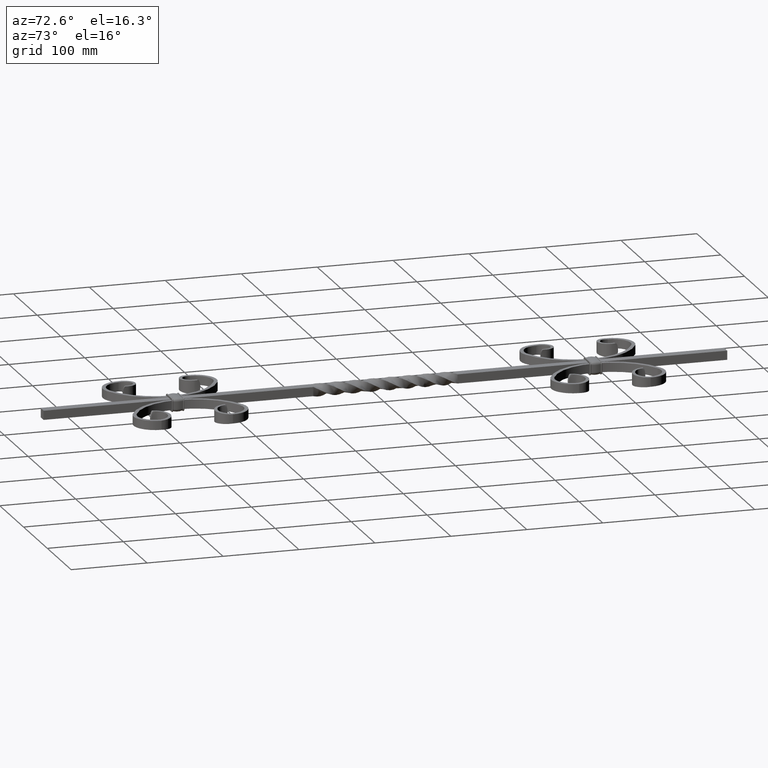
[diagram: clean part render]
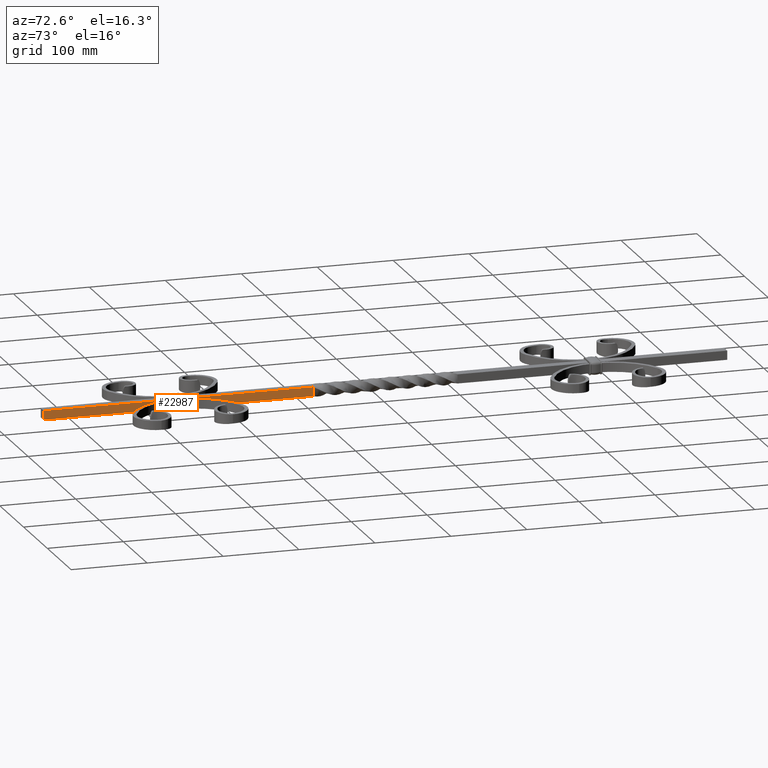
[diagram: same view with one face highlighted and labeled with its STEP entity id]
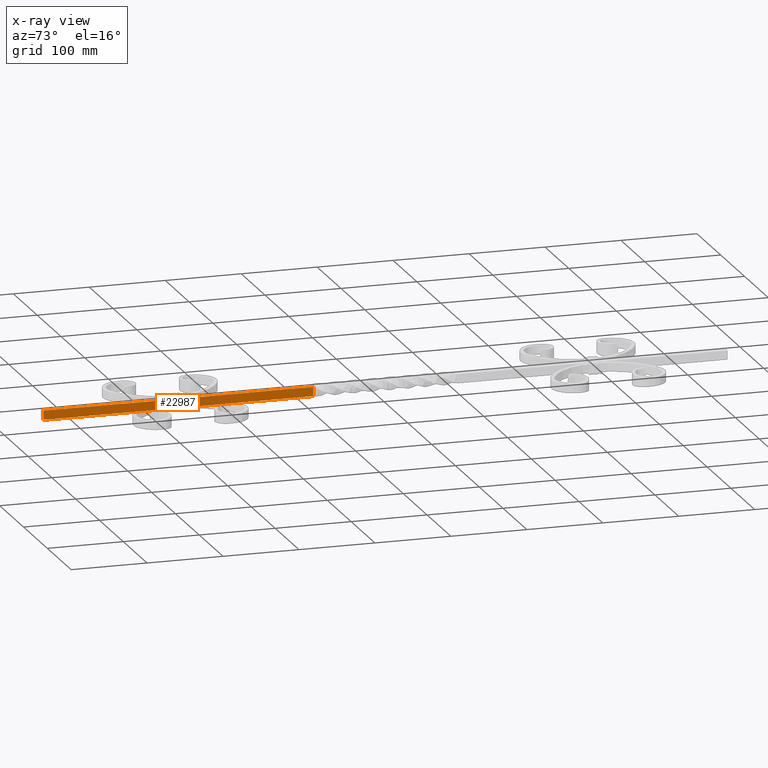
[diagram: x-ray of the same camera — body ghosted, the highlighted face saturated]
A machine part, auxiliary view. The second image highlights one B-rep face of the part: STEP entity #22987.
The next image is the same camera in x-ray: the body ghosted, the highlighted face saturated — about 0% of this face is hidden behind the body in this view.
In plain terms, the highlighted planar face has unit normal (-1, 0, 0).
Its self-contained STEP definition (entity closure, byte-faithful):
#489 = CARTESIAN_POINT ( 'NONE',  ( 5.999999833333336419, -450.0000000000000000, 5.999999999999999112 ) ) ;
#641 = ORIENTED_EDGE ( 'NONE', *, *, #5366, .F. ) ;
#1191 = DIRECTION ( 'NONE',  ( 0.000000000000000000, 0.000000000000000000, 1.000000000000000000 ) ) ;
#1527 = CARTESIAN_POINT ( 'NONE',  ( 6.000000000000002665, 450.0000000000000000, -6.000000000000000888 ) ) ;
#2392 = EDGE_LOOP ( 'NONE', ( #17008, #641, #14295, #19525, #13676, #11693, #13683, #16794 ) ) ;
#2636 = CARTESIAN_POINT ( 'NONE',  ( 6.000000000000002665, -450.0000000000000000, -5.999999833333335530 ) ) ;
#2790 = CARTESIAN_POINT ( 'NONE',  ( 6.000000000000002665, -338.3333333333333144, -6.000000000000000888 ) ) ;
#3838 = CARTESIAN_POINT ( 'NONE',  ( 6.000000000000002665, -338.3333333333333144, 5.999999999999999112 ) ) ;
#4443 = EDGE_CURVE ( 'NONE', #4492, #12922, #11449, .T. ) ;
#4492 = VERTEX_POINT ( 'NONE', #8671 ) ;
#4552 = CARTESIAN_POINT ( 'NONE',  ( 6.000000000000002665, -450.0000000000000000, 1.999999999999999556 ) ) ;
#4626 = EDGE_CURVE ( 'NONE', #12922, #22944, #16158, .T. ) ;
#5366 = EDGE_CURVE ( 'NONE', #23321, #11657, #7153, .T. ) ;
#5415 = B_SPLINE_CURVE_WITH_KNOTS ( 'NONE', 3,
 ( #9183, #3838, #11095, #5555 ),
 .UNSPECIFIED., .F., .F.,
 ( 4, 4 ),
 ( 0.5281690140845067827, 1.000000000000000000 ),
 .UNSPECIFIED. ) ;
#5555 = CARTESIAN_POINT ( 'NONE',  ( 5.999999833333336419, -450.0000000000000000, 5.999999999999999112 ) ) ;
#5876 = EDGE_CURVE ( 'NONE', #23127, #10347, #5415, .T. ) ;
#7037 = B_SPLINE_CURVE_WITH_KNOTS ( 'NONE', 3,
 ( #489, #4552, #19690, #15909 ),
 .UNSPECIFIED., .F., .F.,
 ( 4, 4 ),
 ( 0.000000000000000000, 0.9999999583333334385 ),
 .UNSPECIFIED. ) ;
#7153 = B_SPLINE_CURVE_WITH_KNOTS ( 'NONE', 3,
 ( #21652, #2790, #23596, #2636 ),
 .UNSPECIFIED., .F., .F.,
 ( 4, 4 ),
 ( 0.5281690140845067827, 1.000000000000000000 ),
 .UNSPECIFIED. ) ;
#7381 = CARTESIAN_POINT ( 'NONE',  ( 6.000000000000002665, -272.5000000000000000, -6.000000000000000000 ) ) ;
#7784 = B_SPLINE_CURVE_WITH_KNOTS ( 'NONE', 3,
 ( #18873, #7381, #24505, #14913 ),
 .UNSPECIFIED., .F., .F.,
 ( 4, 4 ),
 ( 0.4859154929577466642, 0.5281690140845067827 ),
 .UNSPECIFIED. ) ;
#7846 = DIRECTION ( 'NONE',  ( -0.000000000000000000, -0.000000000000000000, -1.000000000000000000 ) ) ;
#8460 = CARTESIAN_POINT ( 'NONE',  ( 6.000000000000002665, -152.5000000000000284, -6.000000000000000888 ) ) ;
#8671 = CARTESIAN_POINT ( 'NONE',  ( 6.000000036602328279, -94.99999992951285321, 5.999999978876450868 ) ) ;
#9183 = CARTESIAN_POINT ( 'NONE',  ( 6.000000000000002665, -282.5000000000000000, 5.999999999999999112 ) ) ;
#9647 = CARTESIAN_POINT ( 'NONE',  ( 6.000000000000002665, -267.5000000000000000, 5.999999999999969802 ) ) ;
#9719 = CARTESIAN_POINT ( 'NONE',  ( 6.000000000000002665, -282.5000000000000000, 5.999999999999999112 ) ) ;
#10347 = VERTEX_POINT ( 'NONE', #15077 ) ;
#10453 = CARTESIAN_POINT ( 'NONE',  ( 6.000000000000002665, -267.5000000000000568, -6.000000000000000888 ) ) ;
#10681 = EDGE_CURVE ( 'NONE', #22944, #23321, #7784, .T. ) ;
#10851 = CARTESIAN_POINT ( 'NONE',  ( 6.000000000000002665, -267.5000000000000000, 5.999999999999969802 ) ) ;
#11095 = CARTESIAN_POINT ( 'NONE',  ( 6.000000000000002665, -394.1666666666666856, 5.999999999999999112 ) ) ;
#11127 = VERTEX_POINT ( 'NONE', #23387 ) ;
#11449 = LINE ( 'NONE', #11889, #11748 ) ;
#11657 = VERTEX_POINT ( 'NONE', #13177 ) ;
#11693 = ORIENTED_EDGE ( 'NONE', *, *, #17434, .T. ) ;
#11748 = VECTOR ( 'NONE', #7846, 1000.000000000000000 ) ;
#11889 = CARTESIAN_POINT ( 'NONE',  ( 6.000000000000002665, -95.00000000000002842, -6.000000000000000888 ) ) ;
#12877 = B_SPLINE_CURVE_WITH_KNOTS ( 'NONE', 3,
 ( #19985, #14561, #18211, #10851 ),
 .UNSPECIFIED., .F., .F.,
 ( 4, 4 ),
 ( 0.000000000000000000, 0.4859154929577464976 ),
 .UNSPECIFIED. ) ;
#12922 = VERTEX_POINT ( 'NONE', #20874 ) ;
#13177 = CARTESIAN_POINT ( 'NONE',  ( 6.000000000000002665, -450.0000000000000000, -5.999999833333335530 ) ) ;
#13676 = ORIENTED_EDGE ( 'NONE', *, *, #4443, .F. ) ;
#13683 = ORIENTED_EDGE ( 'NONE', *, *, #18386, .T. ) ;
#14295 = ORIENTED_EDGE ( 'NONE', *, *, #10681, .F. ) ;
#14561 = CARTESIAN_POINT ( 'NONE',  ( 6.000000000000002665, -152.5000000000000284, 5.999999999999999112 ) ) ;
#14913 = CARTESIAN_POINT ( 'NONE',  ( 6.000000000000002665, -282.5000000000000568, -5.999999999999968914 ) ) ;
#15077 = CARTESIAN_POINT ( 'NONE',  ( 5.999999833333336419, -450.0000000000000000, 5.999999999999999112 ) ) ;
#15689 = CARTESIAN_POINT ( 'NONE',  ( 6.000000000000002665, -282.5000000000000568, -5.999999999999968914 ) ) ;
#15909 = CARTESIAN_POINT ( 'NONE',  ( 6.000000000000002665, -450.0000000000000000, -5.999999833333335530 ) ) ;
#16158 = B_SPLINE_CURVE_WITH_KNOTS ( 'NONE', 3,
 ( #19820, #8460, #21757, #10453 ),
 .UNSPECIFIED., .F., .F.,
 ( 4, 4 ),
 ( 0.000000000000000000, 0.4859154929577464976 ),
 .UNSPECIFIED. ) ;
#16205 = B_SPLINE_CURVE_WITH_KNOTS ( 'NONE', 3,
 ( #9647, #19434, #17147, #9719 ),
 .UNSPECIFIED., .F., .F.,
 ( 4, 4 ),
 ( 0.4859154929577466642, 0.5281690140845067827 ),
 .UNSPECIFIED. ) ;
#16546 = CARTESIAN_POINT ( 'NONE',  ( 6.000000000000002665, -267.5000000000000568, -6.000000000000000888 ) ) ;
#16794 = ORIENTED_EDGE ( 'NONE', *, *, #5876, .T. ) ;
#17008 = ORIENTED_EDGE ( 'NONE', *, *, #20622, .T. ) ;
#17147 = CARTESIAN_POINT ( 'NONE',  ( 6.000000000000002665, -277.4999999999999432, 5.999999999999998224 ) ) ;
#17434 = EDGE_CURVE ( 'NONE', #4492, #11127, #12877, .T. ) ;
#18211 = CARTESIAN_POINT ( 'NONE',  ( 6.000000000000002665, -210.0000000000000568, 5.999999999999999112 ) ) ;
#18364 = PLANE ( 'NONE',  #22177 ) ;
#18386 = EDGE_CURVE ( 'NONE', #11127, #23127, #16205, .T. ) ;
#18616 = CARTESIAN_POINT ( 'NONE',  ( 6.000000000000002665, -282.5000000000000000, 5.999999999999999112 ) ) ;
#18873 = CARTESIAN_POINT ( 'NONE',  ( 6.000000000000002665, -267.5000000000000568, -6.000000000000000888 ) ) ;
#19434 = CARTESIAN_POINT ( 'NONE',  ( 6.000000000000002665, -272.5000000000000000, 5.999999999999998224 ) ) ;
#19525 = ORIENTED_EDGE ( 'NONE', *, *, #4626, .F. ) ;
#19690 = CARTESIAN_POINT ( 'NONE',  ( 6.000000000000002665, -450.0000000000000568, -2.000000000000000444 ) ) ;
#19820 = CARTESIAN_POINT ( 'NONE',  ( 6.000000000000002665, -95.00000000000002842, -6.000000000000000888 ) ) ;
#19985 = CARTESIAN_POINT ( 'NONE',  ( 6.000000036602328279, -94.99999992951285321, 5.999999978876450868 ) ) ;
#20404 = DIRECTION ( 'NONE',  ( -1.000000000000000000, 0.000000000000000000, 0.000000000000000000 ) ) ;
#20622 = EDGE_CURVE ( 'NONE', #10347, #11657, #7037, .T. ) ;
#20874 = CARTESIAN_POINT ( 'NONE',  ( 6.000000000000002665, -95.00000000000002842, -6.000000000000000888 ) ) ;
#21618 = FACE_OUTER_BOUND ( 'NONE', #2392, .T. ) ;
#21652 = CARTESIAN_POINT ( 'NONE',  ( 6.000000000000002665, -282.5000000000000568, -5.999999999999968914 ) ) ;
#21757 = CARTESIAN_POINT ( 'NONE',  ( 6.000000000000002665, -210.0000000000000568, -6.000000000000000888 ) ) ;
#22177 = AXIS2_PLACEMENT_3D ( 'NONE', #1527, #20404, #1191 ) ;
#22944 = VERTEX_POINT ( 'NONE', #16546 ) ;
#22987 = ADVANCED_FACE ( 'NONE', ( #21618 ), #18364, .F. ) ;
#23127 = VERTEX_POINT ( 'NONE', #18616 ) ;
#23321 = VERTEX_POINT ( 'NONE', #15689 ) ;
#23387 = CARTESIAN_POINT ( 'NONE',  ( 6.000000000000002665, -267.5000000000000000, 5.999999999999969802 ) ) ;
#23596 = CARTESIAN_POINT ( 'NONE',  ( 6.000000000000002665, -394.1666666666666856, -6.000000000000000888 ) ) ;
#24505 = CARTESIAN_POINT ( 'NONE',  ( 6.000000000000002665, -277.4999999999999432, -5.999999999999999112 ) ) ;